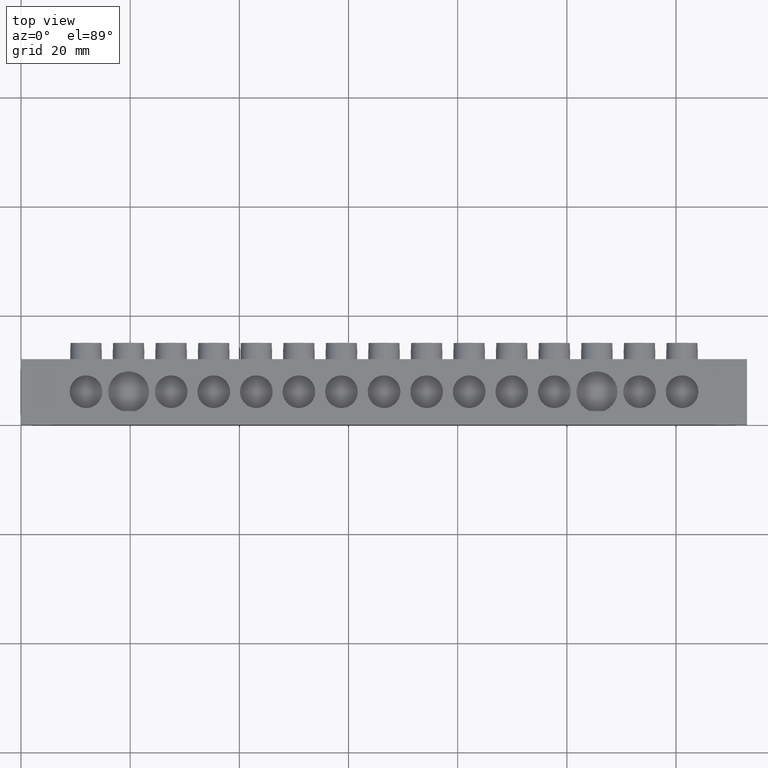
[diagram: clean part render]
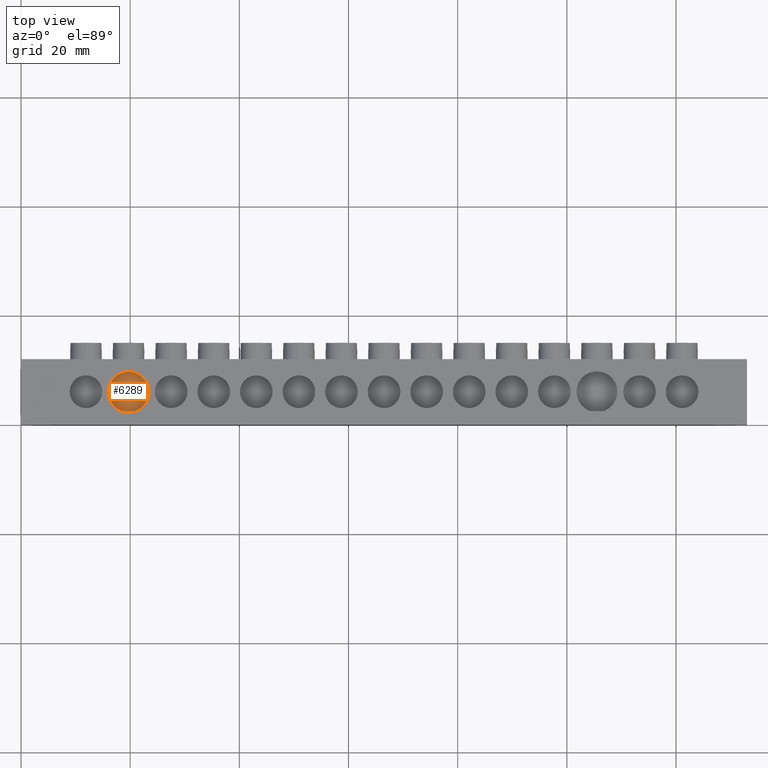
[diagram: same view with one face highlighted and labeled with its STEP entity id]
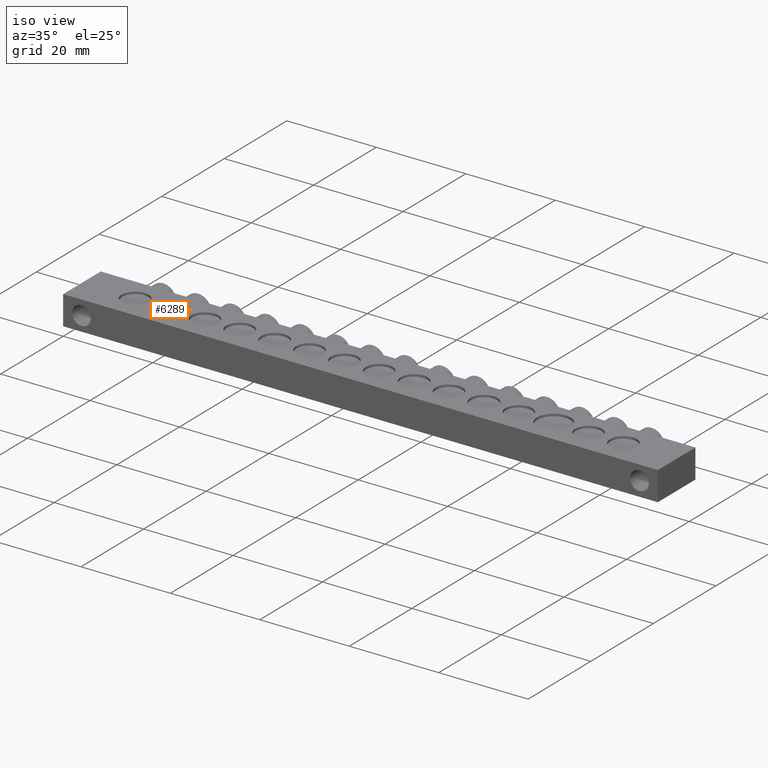
[diagram: same view with one face highlighted and labeled with its STEP entity id]
A machine part, top view. The second image highlights one B-rep face of the part: STEP entity #6289.
A second angle (iso view) of the same face is appended — the face is thin or edge-on in the first view.
In plain terms, the highlighted planar face has unit normal (0, 0, 1).
Its self-contained STEP definition (entity closure, byte-faithful):
#1336 = EDGE_LOOP ( 'NONE', ( #1948, #1952 ) ) ;
#1559 = VERTEX_POINT ( 'NONE', #9123 ) ;
#1625 = VERTEX_POINT ( 'NONE', #9182 ) ;
#1948 = ORIENTED_EDGE ( 'NONE', *, *, #5957, .F. ) ;
#1952 = ORIENTED_EDGE ( 'NONE', *, *, #4146, .F. ) ;
#2251 = AXIS2_PLACEMENT_3D ( 'NONE', #2933, #2934, #2928 ) ;
#2928 = DIRECTION ( 'NONE',  ( 1.000000000000000000, 0.0000000000000000000, -0.0000000000000000000 ) ) ;
#2933 = CARTESIAN_POINT ( 'NONE',  ( 0.5000000000000000000, 11.50000000000000000, 6.000000000000000000 ) ) ;
#2934 = DIRECTION ( 'NONE',  ( 0.0000000000000000000, 0.0000000000000000000, 1.000000000000000000 ) ) ;
#2941 = FACE_OUTER_BOUND ( 'NONE', #1336, .T. ) ;
#2954 = PLANE ( 'NONE',  #2251 ) ;
#4146 = EDGE_CURVE ( 'NONE', #1625, #1559, #6537, .T. ) ;
#5957 = EDGE_CURVE ( 'NONE', #1559, #1625, #6375, .T. ) ;
#6289 = ADVANCED_FACE ( 'NONE', ( #2941 ), #2954, .T. ) ;
#6325 = AXIS2_PLACEMENT_3D ( 'NONE', #9837, #9879, #9881 ) ;
#6375 = CIRCLE ( 'NONE', #6325, 3.750000000000000000 ) ;
#6537 = CIRCLE ( 'NONE', #6563, 3.750000000000000000 ) ;
#6563 = AXIS2_PLACEMENT_3D ( 'NONE', #9296, #9268, #9302 ) ;
#9123 = CARTESIAN_POINT ( 'NONE',  ( 23.45000000000000300, 6.000000000000000000, 5.999999999999998200 ) ) ;
#9182 = CARTESIAN_POINT ( 'NONE',  ( 15.95000000000000300, 6.000000000000000900, 5.999999999999998200 ) ) ;
#9268 = DIRECTION ( 'NONE',  ( -0.0000000000000000000, -0.0000000000000000000, -1.000000000000000000 ) ) ;
#9296 = CARTESIAN_POINT ( 'NONE',  ( 19.70000000000000300, 6.000000000000000000, 5.999999999999998200 ) ) ;
#9302 = DIRECTION ( 'NONE',  ( 1.000000000000000000, 0.0000000000000000000, 0.0000000000000000000 ) ) ;
#9837 = CARTESIAN_POINT ( 'NONE',  ( 19.70000000000000300, 6.000000000000000000, 5.999999999999998200 ) ) ;
#9879 = DIRECTION ( 'NONE',  ( -0.0000000000000000000, -0.0000000000000000000, -1.000000000000000000 ) ) ;
#9881 = DIRECTION ( 'NONE',  ( 1.000000000000000000, 0.0000000000000000000, 0.0000000000000000000 ) ) ;